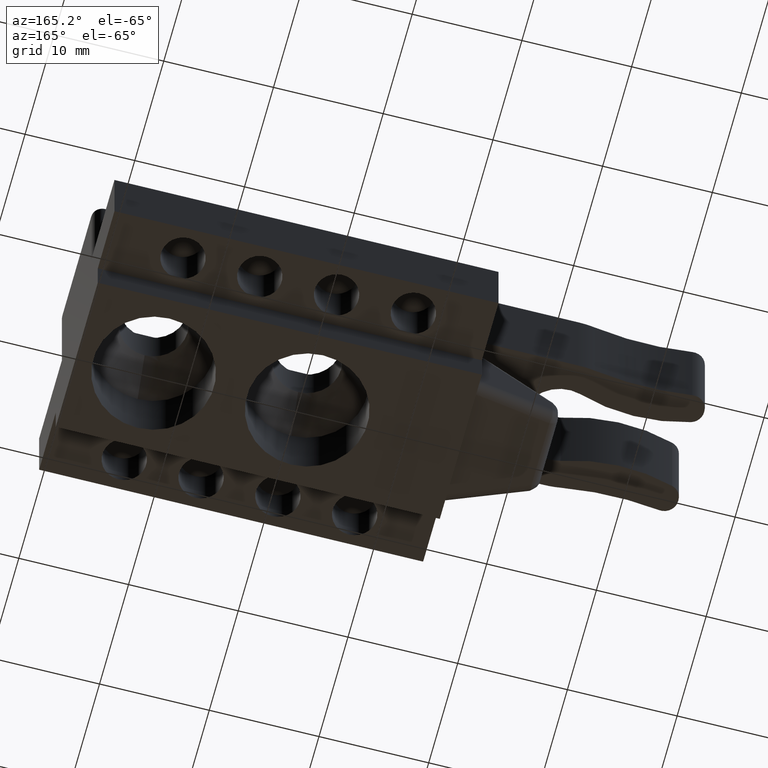
[diagram: clean part render]
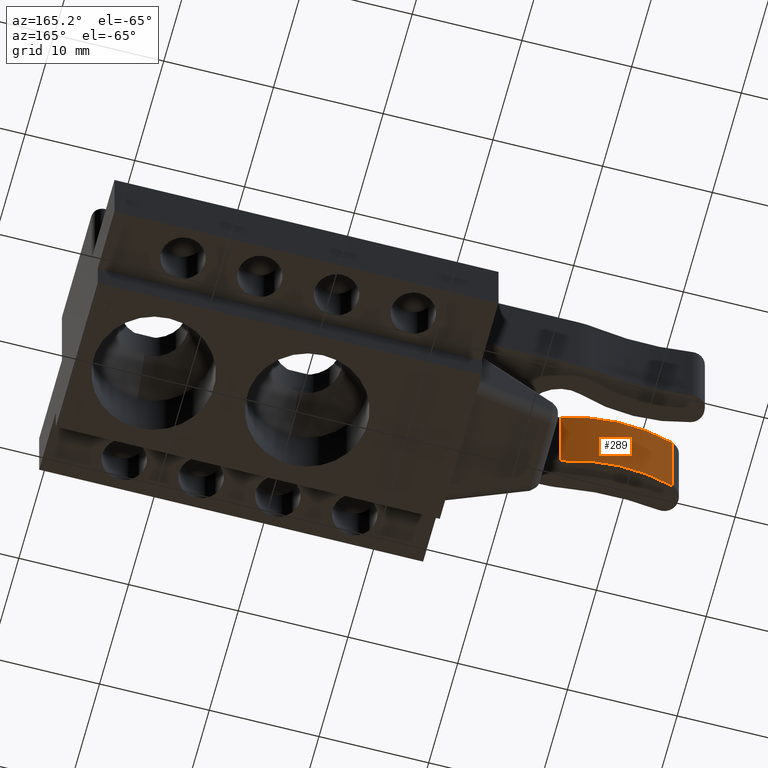
[diagram: same view with one face highlighted and labeled with its STEP entity id]
A machine part, auxiliary view. The second image highlights one B-rep face of the part: STEP entity #289.
In plain terms, the highlighted cylindrical surface (partial cylindrical patch) has radius 16.7829 mm, axis along (0, 0, -1).
Its self-contained STEP definition (entity closure, byte-faithful):
#222=CARTESIAN_POINT('',(-45.000000889447996,-3.354101736757125,9.500000000000011));
#223=VERTEX_POINT('',#222);
#231=CARTESIAN_POINT('',(-45.000000889447996,-3.354101736757125,18.500000000000000));
#232=VERTEX_POINT('',#231);
#233=CARTESIAN_POINT('',(-45.000000889447996,-3.354101736757125,9.500000000000014));
#234=DIRECTION('',(0.0,0.0,1.0));
#235=VECTOR('',#234,8.999999999999986);
#236=LINE('',#233,#235);
#237=EDGE_CURVE('',#223,#232,#236,.T.);
#257=CARTESIAN_POINT('',(-50.289714340769798,-19.281571032246909,18.500000010000001));
#258=DIRECTION('',(0.0,0.0,-1.0));
#259=DIRECTION('',(1.0,0.0,0.0));
#260=AXIS2_PLACEMENT_3D('',#257,#258,#259);
#261=CYLINDRICAL_SURFACE('',#260,16.782888504541301);
#262=CARTESIAN_POINT('',(-55.108938845946696,-3.205488744432877,9.500000000000011));
#263=VERTEX_POINT('',#262);
#264=CARTESIAN_POINT('',(-50.289714340769798,-19.281571032246909,9.500000000000011));
#265=DIRECTION('',(0.0,0.0,1.0));
#266=DIRECTION('',(1.0,0.0,0.0));
#267=AXIS2_PLACEMENT_3D('',#264,#265,#266);
#268=CIRCLE('',#267,16.782888504541301);
#269=EDGE_CURVE('',#223,#263,#268,.T.);
#270=ORIENTED_EDGE('',*,*,#269,.T.);
#271=CARTESIAN_POINT('',(-55.108938845946696,-3.205488744432877,18.500000000000000));
#272=VERTEX_POINT('',#271);
#273=CARTESIAN_POINT('',(-55.108938845946696,-3.205488744432877,9.500000000000014));
#274=DIRECTION('',(0.0,0.0,1.0));
#275=VECTOR('',#274,8.999999999999986);
#276=LINE('',#273,#275);
#277=EDGE_CURVE('',#263,#272,#276,.T.);
#278=ORIENTED_EDGE('',*,*,#277,.T.);
#279=CARTESIAN_POINT('',(-50.289714340769798,-19.281571032246909,18.500000000000000));
#280=DIRECTION('',(0.0,0.0,1.0));
#281=DIRECTION('',(-1.0,0.0,0.0));
#282=AXIS2_PLACEMENT_3D('',#279,#280,#281);
#283=CIRCLE('',#282,16.782888504541301);
#284=EDGE_CURVE('',#232,#272,#283,.T.);
#285=ORIENTED_EDGE('',*,*,#284,.F.);
#286=ORIENTED_EDGE('',*,*,#237,.F.);
#287=EDGE_LOOP('',(#270,#278,#285,#286));
#288=FACE_OUTER_BOUND('',#287,.T.);
#289=ADVANCED_FACE('',(#288),#261,.T.);